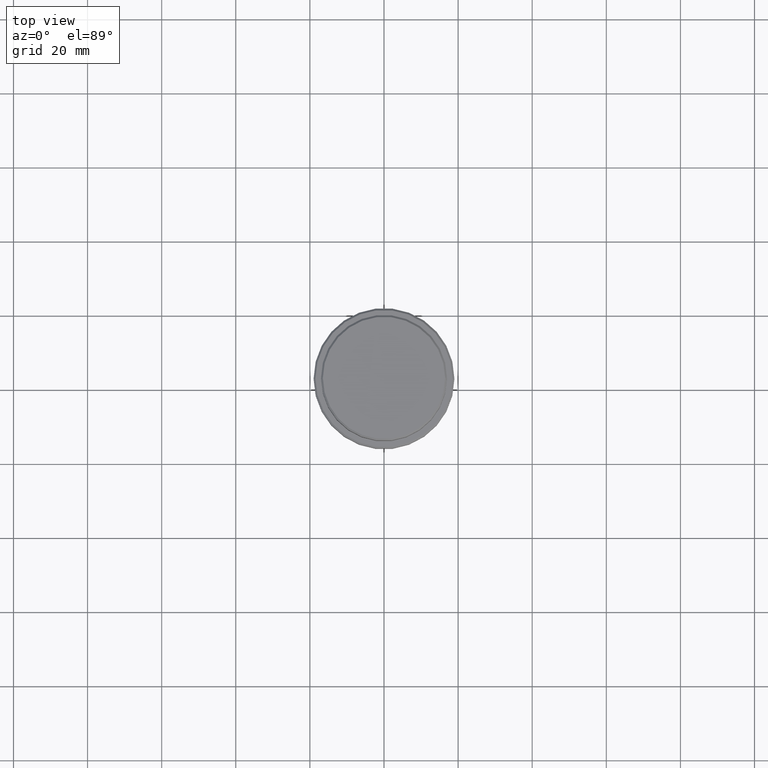
[diagram: clean part render]
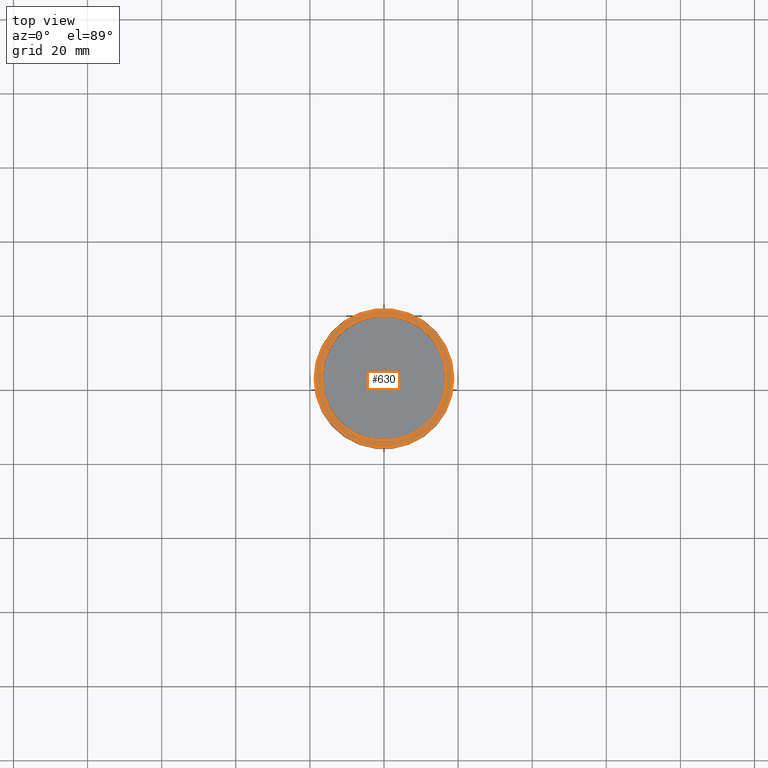
[diagram: same view with one face highlighted and labeled with its STEP entity id]
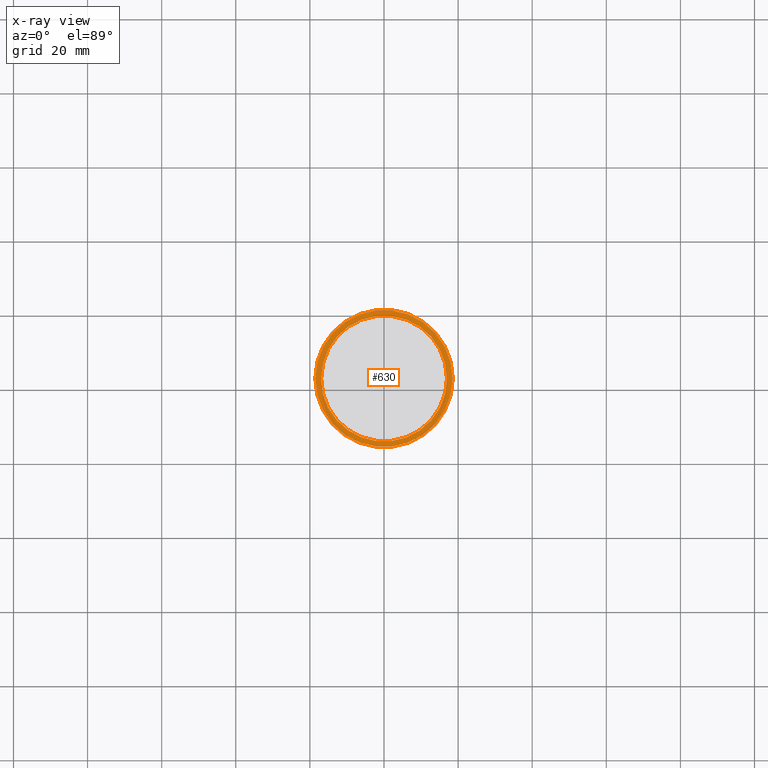
[diagram: x-ray of the same camera — body ghosted, the highlighted face saturated]
A machine part, top view. The second image highlights one B-rep face of the part: STEP entity #630.
The next image is the same camera in x-ray: the body ghosted, the highlighted face saturated — about 0% of this face is hidden behind the body in this view.
In plain terms, the highlighted planar face has unit normal (0, -0, 1).
Its self-contained STEP definition (entity closure, byte-faithful):
#5 = EDGE_CURVE ( 'NONE', #607, #676, #818, .T. ) ;
#20 = CARTESIAN_POINT ( 'NONE',  ( -18.50000000000001776, 0.000000000000000000, -9.999999999999998224 ) ) ;
#34 = EDGE_CURVE ( 'NONE', #609, #916, #969, .T. ) ;
#36 = FACE_BOUND ( 'NONE', #64, .T. ) ;
#42 = EDGE_CURVE ( 'NONE', #916, #609, #1201, .T. ) ;
#48 = AXIS2_PLACEMENT_3D ( 'NONE', #95, #1387, #415 ) ;
#64 = EDGE_LOOP ( 'NONE', ( #1324, #358 ) ) ;
#95 = CARTESIAN_POINT ( 'NONE',  ( 0.000000000000000000, 0.000000000000000000, -9.999999999999998224 ) ) ;
#132 = AXIS2_PLACEMENT_3D ( 'NONE', #201, #537, #467 ) ;
#146 = DIRECTION ( 'NONE',  ( 1.000000000000000000, 0.000000000000000000, 0.000000000000000000 ) ) ;
#151 = PLANE ( 'NONE',  #1413 ) ;
#173 = EDGE_CURVE ( 'NONE', #676, #607, #843, .T. ) ;
#201 = CARTESIAN_POINT ( 'NONE',  ( 0.000000000000000000, 0.000000000000000000, -9.999999999999998224 ) ) ;
#214 = ORIENTED_EDGE ( 'NONE', *, *, #34, .T. ) ;
#304 = CARTESIAN_POINT ( 'NONE',  ( 0.000000000000000000, 0.000000000000000000, -9.999999999999998224 ) ) ;
#358 = ORIENTED_EDGE ( 'NONE', *, *, #5, .T. ) ;
#370 = AXIS2_PLACEMENT_3D ( 'NONE', #304, #1165, #636 ) ;
#415 = DIRECTION ( 'NONE',  ( 1.000000000000000000, 0.000000000000000000, 0.000000000000000000 ) ) ;
#467 = DIRECTION ( 'NONE',  ( 1.000000000000000000, 0.000000000000000000, 0.000000000000000000 ) ) ;
#478 = CARTESIAN_POINT ( 'NONE',  ( 0.000000000000000000, 16.49999999999997158, -9.999999999999998224 ) ) ;
#537 = DIRECTION ( 'NONE',  ( -0.000000000000000000, -0.000000000000000000, 1.000000000000000000 ) ) ;
#573 = CARTESIAN_POINT ( 'NONE',  ( -16.99999999999997513, 2.081899558550497519E-15, -9.999999999999998224 ) ) ;
#575 = EDGE_LOOP ( 'NONE', ( #214, #1367 ) ) ;
#607 = VERTEX_POINT ( 'NONE', #573 ) ;
#609 = VERTEX_POINT ( 'NONE', #20 ) ;
#621 = CARTESIAN_POINT ( 'NONE',  ( 0.000000000000000000, 0.000000000000000000, -9.999999999999998224 ) ) ;
#630 = ADVANCED_FACE ( 'NONE', ( #1211, #36 ), #151, .T. ) ;
#636 = DIRECTION ( 'NONE',  ( 1.000000000000000000, 0.000000000000000000, 0.000000000000000000 ) ) ;
#657 = DIRECTION ( 'NONE',  ( 0.000000000000000000, 0.000000000000000000, -1.000000000000000000 ) ) ;
#676 = VERTEX_POINT ( 'NONE', #733 ) ;
#733 = CARTESIAN_POINT ( 'NONE',  ( 16.99999999999997513, 0.000000000000000000, -9.999999999999998224 ) ) ;
#818 = CIRCLE ( 'NONE', #48, 16.99999999999997513 ) ;
#843 = CIRCLE ( 'NONE', #954, 16.99999999999997513 ) ;
#916 = VERTEX_POINT ( 'NONE', #1142 ) ;
#954 = AXIS2_PLACEMENT_3D ( 'NONE', #621, #657, #1311 ) ;
#969 = CIRCLE ( 'NONE', #370, 18.50000000000001776 ) ;
#1142 = CARTESIAN_POINT ( 'NONE',  ( 18.50000000000001776, 2.296212748401286789E-15, -9.999999999999998224 ) ) ;
#1165 = DIRECTION ( 'NONE',  ( -0.000000000000000000, -0.000000000000000000, 1.000000000000000000 ) ) ;
#1201 = CIRCLE ( 'NONE', #132, 18.50000000000001776 ) ;
#1211 = FACE_OUTER_BOUND ( 'NONE', #575, .T. ) ;
#1311 = DIRECTION ( 'NONE',  ( 1.000000000000000000, 0.000000000000000000, 0.000000000000000000 ) ) ;
#1324 = ORIENTED_EDGE ( 'NONE', *, *, #173, .T. ) ;
#1343 = DIRECTION ( 'NONE',  ( 0.000000000000000000, -0.000000000000000000, 1.000000000000000000 ) ) ;
#1367 = ORIENTED_EDGE ( 'NONE', *, *, #42, .T. ) ;
#1387 = DIRECTION ( 'NONE',  ( 0.000000000000000000, 0.000000000000000000, -1.000000000000000000 ) ) ;
#1413 = AXIS2_PLACEMENT_3D ( 'NONE', #478, #1343, #146 ) ;